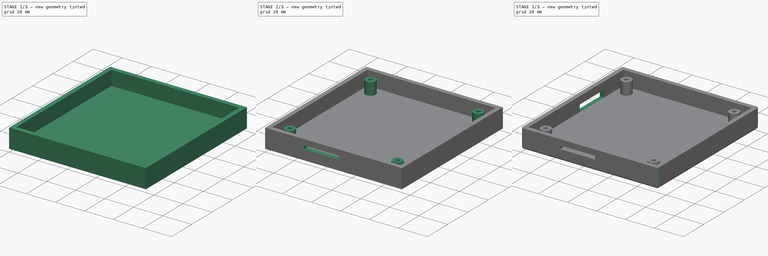
[diagram: build sequence overview — one tinted view per stage of 3, left to right]
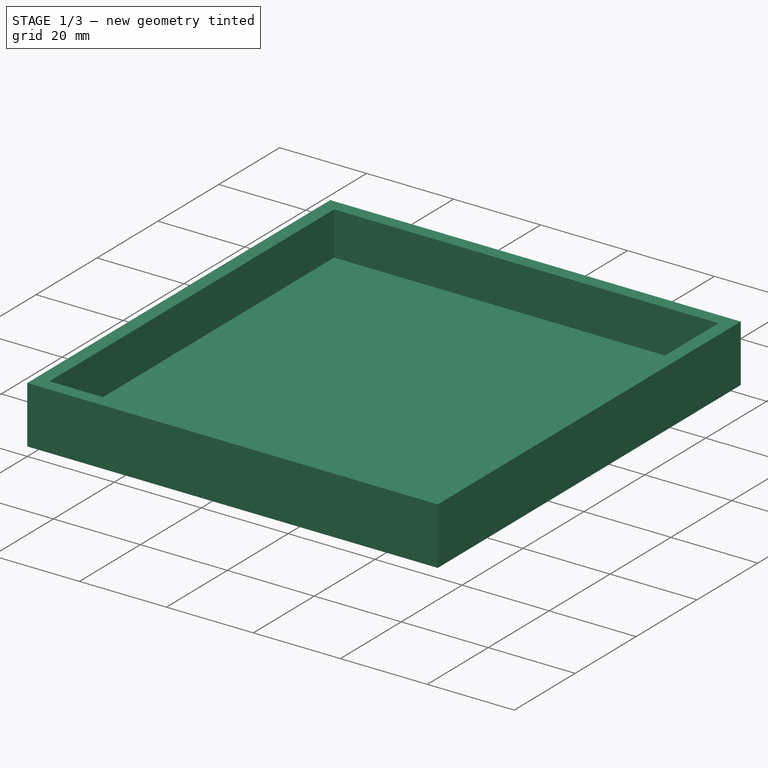
[diagram: stage 1 of 3 — iso view after this stage's code; geometry added in this stage tinted green]
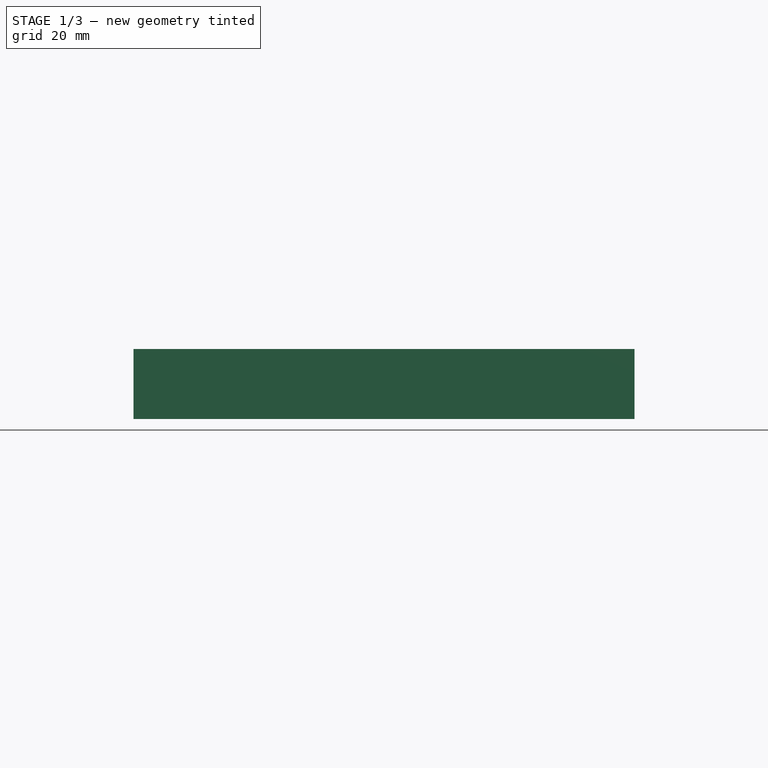
[diagram: stage 1 of 3 — front view after this stage's code; geometry added in this stage tinted green]
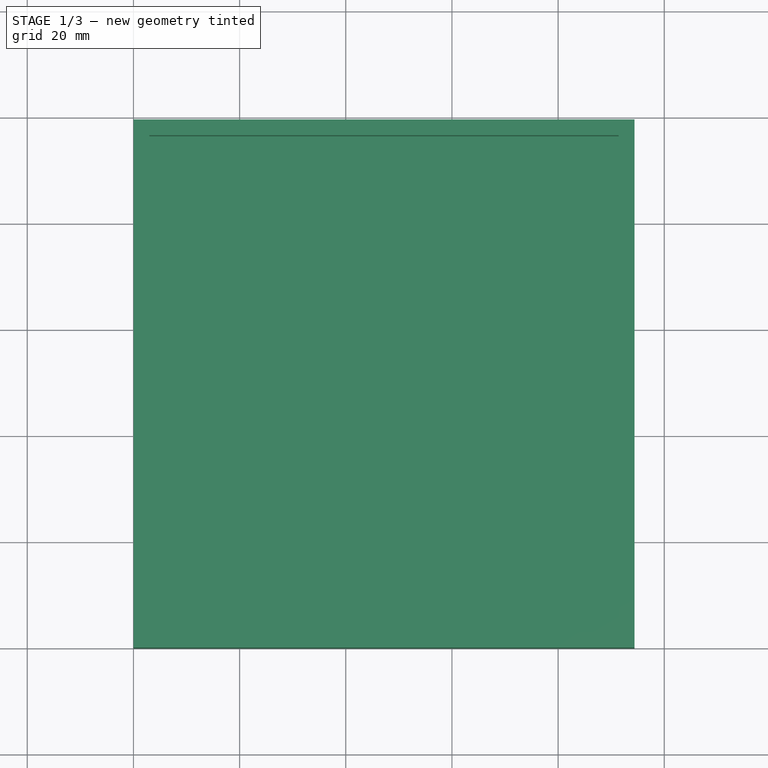
[diagram: stage 1 of 3 — top view after this stage's code; geometry added in this stage tinted green]
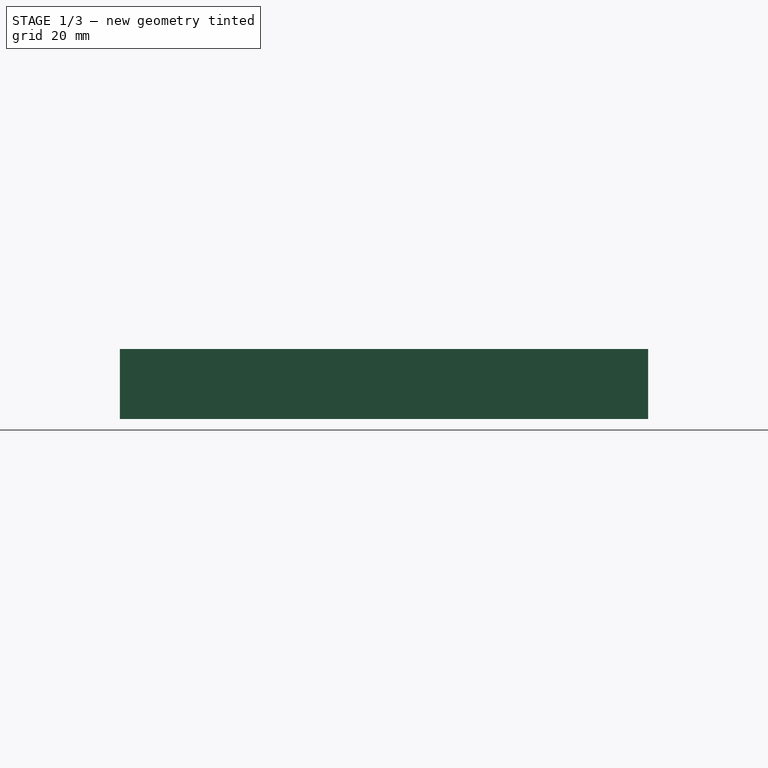
[diagram: stage 1 of 3 — right view after this stage's code; geometry added in this stage tinted green]
FCSTD DOCUMENT  (FreeCAD 0.20R29603 (Git))
Label: CaseBottom
License: All rights reserved
LicenseURL: http://en.wikipedia.org/wiki/All_rights_reserved
objects: Sketcher::SketchObject×5, PartDesign::Pocket×3, PartDesign::Pad×2, PartDesign::Fillet×1, PartDesign::Body×1
note: 18 computed .brp shape members not serialized (recipe doc carries the construction recipe); baked Part::Feature solids carry a one-line shape summary decoded from their .brp

FEATURE [Sketcher::SketchObject] Sketch
  FullyConstrained = true
  MapMode = 5
  Support = -> [XY_Plane]
  sketch-geometry (12):
    g0: LineSegment StartX=7 StartY=7 StartZ=0 EndX=87.4 EndY=7 EndZ=0
    g1: LineSegment StartX=87.4 StartY=7 StartZ=0 EndX=87.4 EndY=92.5 EndZ=0
    g2: LineSegment StartX=87.4 StartY=92.5 StartZ=0 EndX=7 EndY=92.5 EndZ=0
    g3: LineSegment StartX=7 StartY=92.5 StartZ=0 EndX=7 EndY=7 EndZ=0
    g4: LineSegment StartX=0 StartY=0 StartZ=0 EndX=94.4 EndY=0 EndZ=0
    g5: LineSegment StartX=94.4 StartY=0 StartZ=0 EndX=94.4 EndY=99.5 EndZ=0
    g6: LineSegment StartX=94.4 StartY=99.5 StartZ=0 EndX=0 EndY=99.5 EndZ=0
    g7: LineSegment StartX=0 StartY=99.5 StartZ=0 EndX=0 EndY=0 EndZ=0
    g8: LineSegment StartX=7 StartY=7 StartZ=0 EndX=0 EndY=7 EndZ=0
    g9: LineSegment StartX=87.4 StartY=7 StartZ=0 EndX=94.4 EndY=7 EndZ=0
    g10: LineSegment StartX=7 StartY=7 StartZ=0 EndX=7 EndY=0 EndZ=0
    g11: LineSegment StartX=7 StartY=92.5 StartZ=0 EndX=7 EndY=99.5 EndZ=0
  constraints (35):
    c: Coincident(g0,g1)
    c: Coincident(g1,g2)
    c: Coincident(g2,g3)
    c: Coincident(g3,g0)
    c: Horizontal(g0)
    c: Horizontal(g2)
    c: Vertical(g1)
    c: Vertical(g3)
    c: Distance(g3) = 85.5
    c: Distance(g2) = 80.4
    c: Coincident(g4,g5)
    c: Coincident(g5,g6)
    c: Coincident(g6,g7)
    c: Coincident(g7,g4)
    c: Horizontal(g4)
    c: Horizontal(g6)
    c: Vertical(g5)
    c: Vertical(g7)
    c: Coincident(g4,g-1)
    c: Coincident(g8,g0)
    c: PointOnObject(g8,g7)
    c: Horizontal(g8)
    c: Coincident(g9,g0)
    c: PointOnObject(g9,g5)
    c: Horizontal(g9)
    c: Coincident(g10,g0)
    c: PointOnObject(g10,g4)
    c: Vertical(g10)
    c: Coincident(g11,g2)
    c: PointOnObject(g11,g6)
    c: Vertical(g11)
    c: Equal(g11,g10)
    c: Equal(g9,g8)
    c: Equal(g10,g8)
    c: Distance(g10) = 7
FEATURE [PartDesign::Pad] Pad  label="Base"
  Direction = (0,0,1)
  Length = 13.2
  Length2 = 10
  Profile = -> Sketch
  ReferenceAxis = -> Sketch [N_Axis]
  Type = 0
FEATURE [Sketcher::SketchObject] Sketch001
  ExternalGeometry = -> [Pad]
  FullyConstrained = true
  MapMode = 5
  Placement = pos=(0,0,13.2) rot=(0,0,1;0rad)
  Support = -> [Pad]
  sketch-geometry (8):
    g0: LineSegment StartX=3 StartY=3 StartZ=0 EndX=91.4 EndY=3 EndZ=0
    g1: LineSegment StartX=91.4 StartY=3 StartZ=0 EndX=91.4 EndY=96.5 EndZ=0
    g2: LineSegment StartX=91.4 StartY=96.5 StartZ=0 EndX=3 EndY=96.5 EndZ=0
    g3: LineSegment StartX=3 StartY=96.5 StartZ=0 EndX=3 EndY=3 EndZ=0
    g4: LineSegment StartX=3 StartY=3 StartZ=0 EndX=3 EndY=0 EndZ=0
    g5: LineSegment StartX=3 StartY=3 StartZ=0 EndX=0 EndY=3 EndZ=0
    g6: LineSegment StartX=3 StartY=96.5 StartZ=0 EndX=3 EndY=99.5 EndZ=0
    g7: LineSegment StartX=91.4 StartY=3 StartZ=0 EndX=94.4 EndY=3 EndZ=0
  constraints (24):
    c: Coincident(g0,g1)
    c: Coincident(g1,g2)
    c: Coincident(g2,g3)
    c: Coincident(g3,g0)
    c: Horizontal(g0)
    c: Horizontal(g2)
    c: Vertical(g1)
    c: Vertical(g3)
    c: Coincident(g4,g0)
    c: PointOnObject(g4,g-1)
    c: Vertical(g4)
    c: Coincident(g5,g0)
    c: PointOnObject(g5,g-2)
    c: Horizontal(g5)
    c: Coincident(g6,g2)
    c: Vertical(g6)
    c: Coincident(g7,g0)
    c: PointOnObject(g7,g-3)
    c: Horizontal(g7)
    c: PointOnObject(g6,g-4)
    c: Equal(g5,g4)
    c: Distance(g4) = 3
    c: Equal(g7,g5)
    c: Equal(g4,g6)
FEATURE [PartDesign::Pocket] Pocket
  BaseFeature = -> Pad
  Direction = (0,0,-1)
  Length = 10
  Length2 = 5
  Profile = -> Sketch001
  ReferenceAxis = -> Sketch001 [N_Axis]
  Type = 0
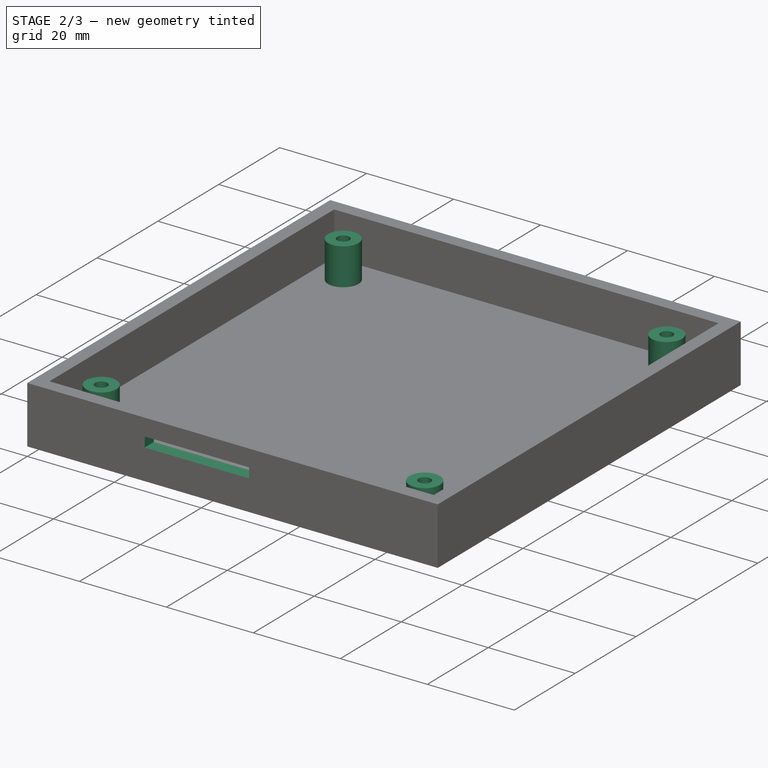
[diagram: stage 2 of 3 — iso view after this stage's code; geometry added in this stage tinted green]
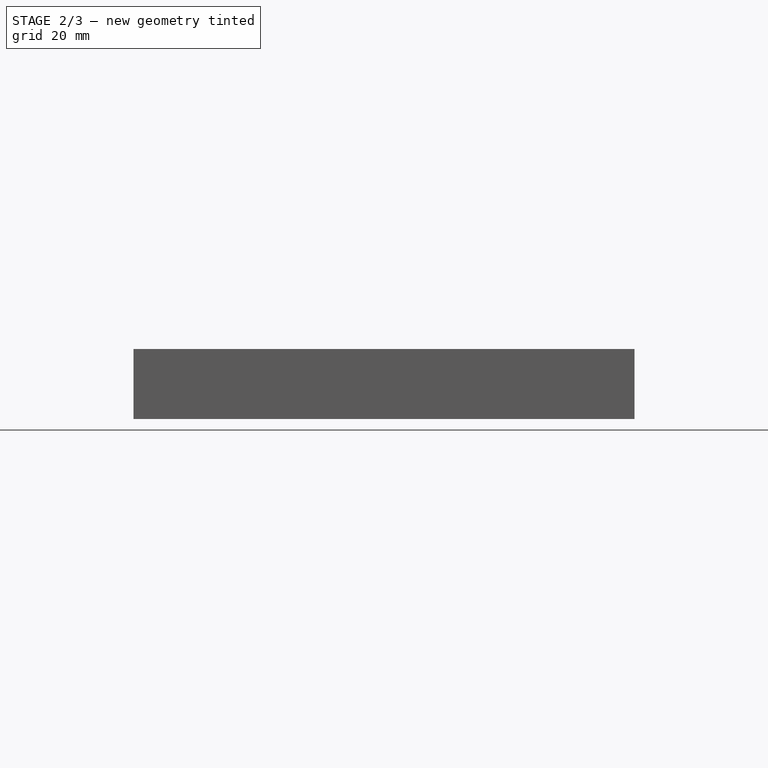
[diagram: stage 2 of 3 — front view after this stage's code; geometry added in this stage tinted green]
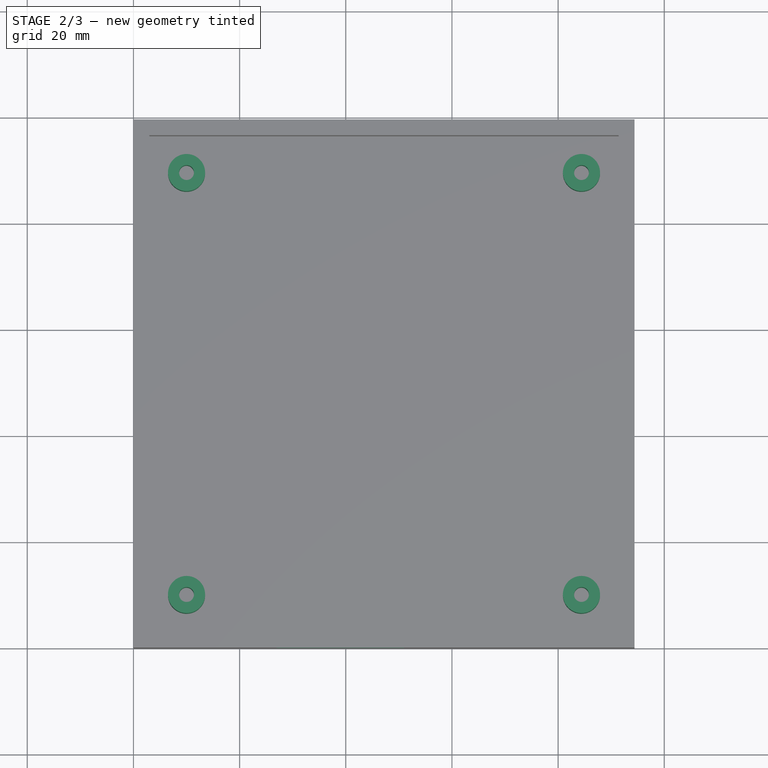
[diagram: stage 2 of 3 — top view after this stage's code; geometry added in this stage tinted green]
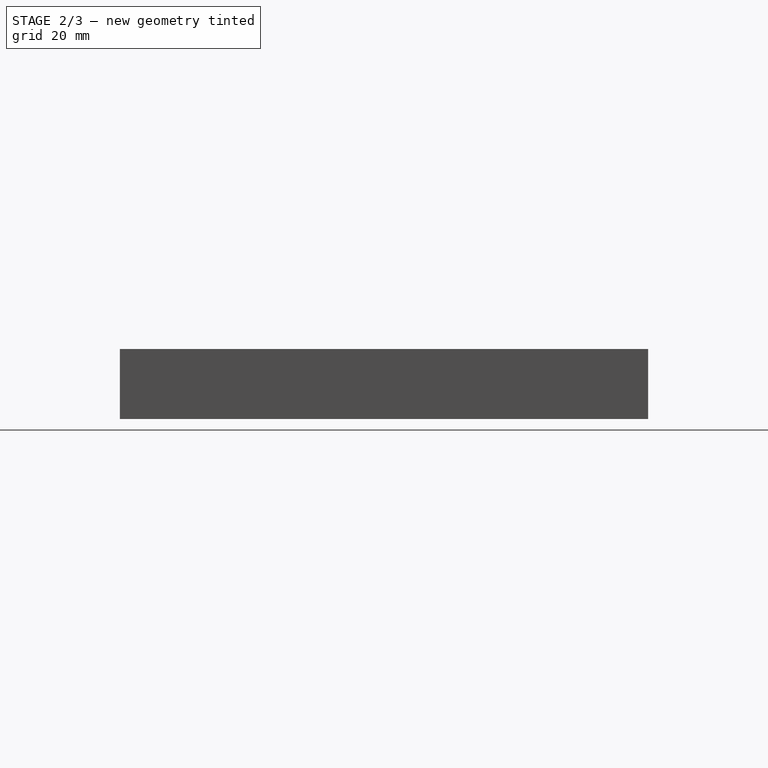
[diagram: stage 2 of 3 — right view after this stage's code; geometry added in this stage tinted green]
FEATURE [Sketcher::SketchObject] Sketch002
  ExternalGeometry = -> [Pocket]
  FullyConstrained = true
  MapMode = 5
  Placement = pos=(0,0,3.2) rot=(0,0,1;0rad)
  Support = -> [Pocket]
  sketch-geometry (16):
    g0: LineSegment StartX=10 StartY=10 StartZ=0 EndX=84.4 EndY=10 EndZ=0
    g1: LineSegment StartX=84.4 StartY=10 StartZ=0 EndX=84.4 EndY=89.5 EndZ=0
    g2: LineSegment StartX=84.4 StartY=89.5 StartZ=0 EndX=10 EndY=89.5 EndZ=0
    g3: LineSegment StartX=10 StartY=89.5 StartZ=0 EndX=10 EndY=10 EndZ=0
    g4: LineSegment StartX=10 StartY=10 StartZ=0 EndX=10 EndY=3 EndZ=0
    g5: LineSegment StartX=10 StartY=10 StartZ=0 EndX=3 EndY=10 EndZ=0
    g6: LineSegment StartX=84.4 StartY=10 StartZ=0 EndX=91.4 EndY=10 EndZ=0
    g7: LineSegment StartX=10 StartY=89.5 StartZ=0 EndX=10 EndY=96.5 EndZ=0
    g8: Circle CenterX=84.4 CenterY=89.5 CenterZ=0 NormalX=0 NormalY=0 NormalZ=1 AngleXU=0 Radius=3.5
    g9: Circle CenterX=84.4 CenterY=89.5 CenterZ=0 NormalX=0 NormalY=0 NormalZ=1 AngleXU=0 Radius=1.4
    g10: Circle CenterX=10 CenterY=89.5 CenterZ=0 NormalX=0 NormalY=0 NormalZ=1 AngleXU=0 Radius=3.5
    g11: Circle CenterX=10 CenterY=89.5 CenterZ=0 NormalX=0 NormalY=0 NormalZ=1 AngleXU=0 Radius=1.4
    g12: Circle CenterX=10 CenterY=10 CenterZ=0 NormalX=0 NormalY=0 NormalZ=1 AngleXU=0 Radius=3.5
    g13: Circle CenterX=10 CenterY=10 CenterZ=0 NormalX=0 NormalY=0 NormalZ=1 AngleXU=0 Radius=1.4
    g14: Circle CenterX=84.4 CenterY=10 CenterZ=0 NormalX=0 NormalY=0 NormalZ=1 AngleXU=0 Radius=3.5
    g15: Circle CenterX=84.4 CenterY=10 CenterZ=0 NormalX=0 NormalY=0 NormalZ=1 AngleXU=0 Radius=1.4
  constraints (40):
    c: Coincident(g0,g1)
    c: Coincident(g1,g2)
    c: Coincident(g2,g3)
    c: Coincident(g3,g0)
    c: Horizontal(g0)
    c: Horizontal(g2)
    c: Vertical(g1)
    c: Vertical(g3)
    c: Coincident(g4,g0)
    c: PointOnObject(g4,g-3)
    c: Vertical(g4)
    c: Coincident(g5,g0)
    c: PointOnObject(g5,g-5)
    c: Horizontal(g5)
    c: Coincident(g6,g0)
    c: PointOnObject(g6,g-4)
    c: Horizontal(g6)
    c: Coincident(g7,g2)
    c: PointOnObject(g7,g-6)
    c: Vertical(g7)
    c: Equal(g4,g7)
    c: Equal(g5,g6)
    c: Coincident(g8,g1)
    c: Coincident(g9,g8)
    c: Diameter(g9) = 2.8
    c: Diameter(g8) = 7
    c: Coincident(g10,g2)
    c: Coincident(g11,g10)
    c: Coincident(g12,g0)
    c: Coincident(g13,g12)
    c: Coincident(g14,g0)
    c: Coincident(g15,g14)
    c: Diameter(g15) = 2.8
    c: Diameter(g14) = 7
    c: Diameter(g12) = 7
    c: Diameter(g13) = 2.8
    c: Diameter(g11) = 2.8
    c: Diameter(g10) = 7
    c: Equal(g5,g4)
    c: Distance(g4) = 7
FEATURE [PartDesign::Pad] Pad001  label="Stand"
  BaseFeature = -> Pocket
  Direction = (0,0,1)
  Length = 8.5
  Length2 = 10
  Profile = -> Sketch002
  ReferenceAxis = -> Sketch002 [N_Axis]
  Type = 0
FEATURE [Sketcher::SketchObject] Sketch003
  FullyConstrained = true
  MapMode = 5
  Placement = pos=(0,0,0) rot=(1,0,0;1.5708rad)
  Support = -> [Pad001]
  sketch-geometry (4):
    g0: LineSegment StartX=27 StartY=9.3 StartZ=0 EndX=51 EndY=9.3 EndZ=0
    g1: LineSegment StartX=51 StartY=9.3 StartZ=0 EndX=51 EndY=7 EndZ=0
    g2: LineSegment StartX=51 StartY=7 StartZ=0 EndX=27 EndY=7 EndZ=0
    g3: LineSegment StartX=27 StartY=7 StartZ=0 EndX=27 EndY=9.3 EndZ=0
  constraints (12):
    c: Coincident(g0,g1)
    c: Coincident(g1,g2)
    c: Coincident(g2,g3)
    c: Coincident(g3,g0)
    c: Horizontal(g0)
    c: Horizontal(g2)
    c: Vertical(g1)
    c: Vertical(g3)
    c: Distance(g1) = 2.3
    c: Distance(g0,g-2) = 27
    c: Distance(g2) = 24
    c: Distance(g2,g-1) = 7
FEATURE [PartDesign::Pocket] Pocket001  label="SD"
  BaseFeature = -> Pad001
  Direction = (0,1,-2e-16)
  Length = 5
  Length2 = 5
  Profile = -> Sketch003
  ReferenceAxis = -> Sketch003 [N_Axis]
  Type = 2
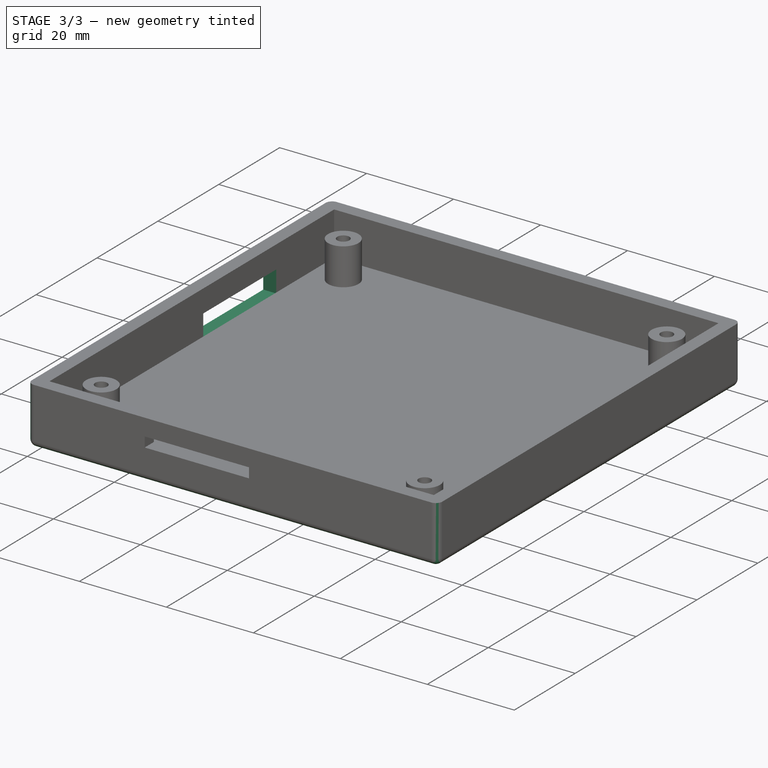
[diagram: stage 3 of 3 — iso view after this stage's code; geometry added in this stage tinted green]
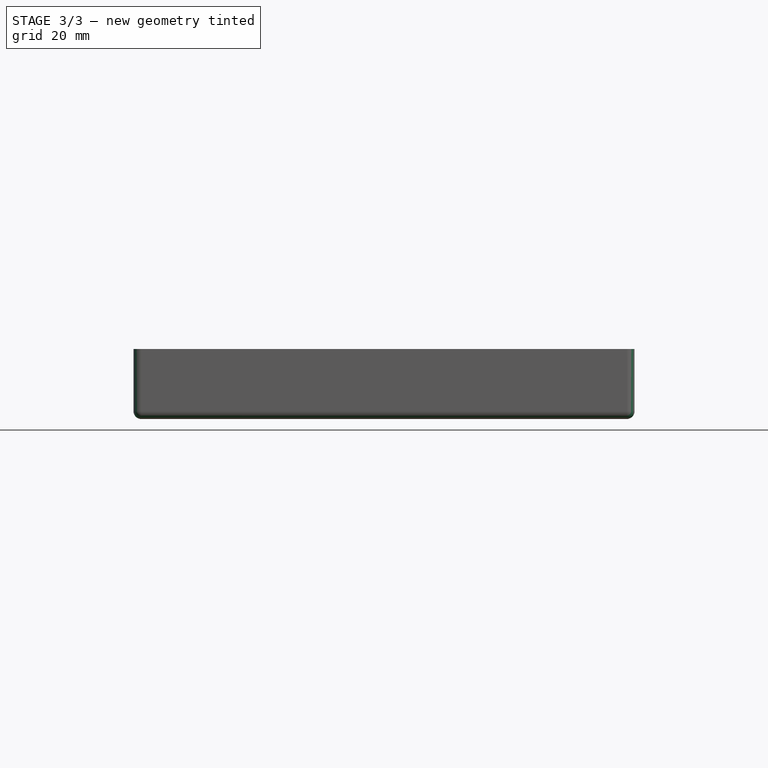
[diagram: stage 3 of 3 — front view after this stage's code; geometry added in this stage tinted green]
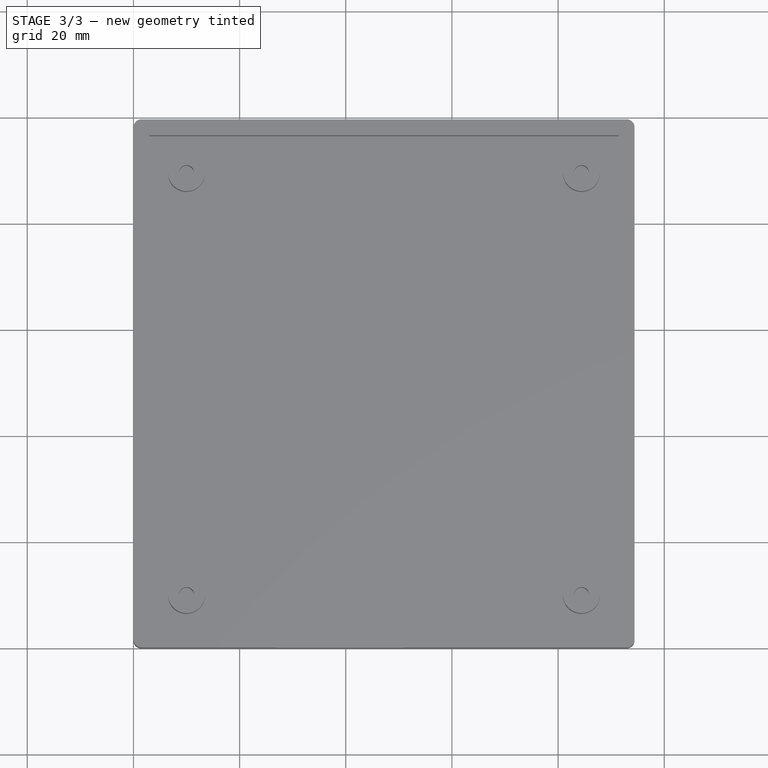
[diagram: stage 3 of 3 — top view after this stage's code; geometry added in this stage tinted green]
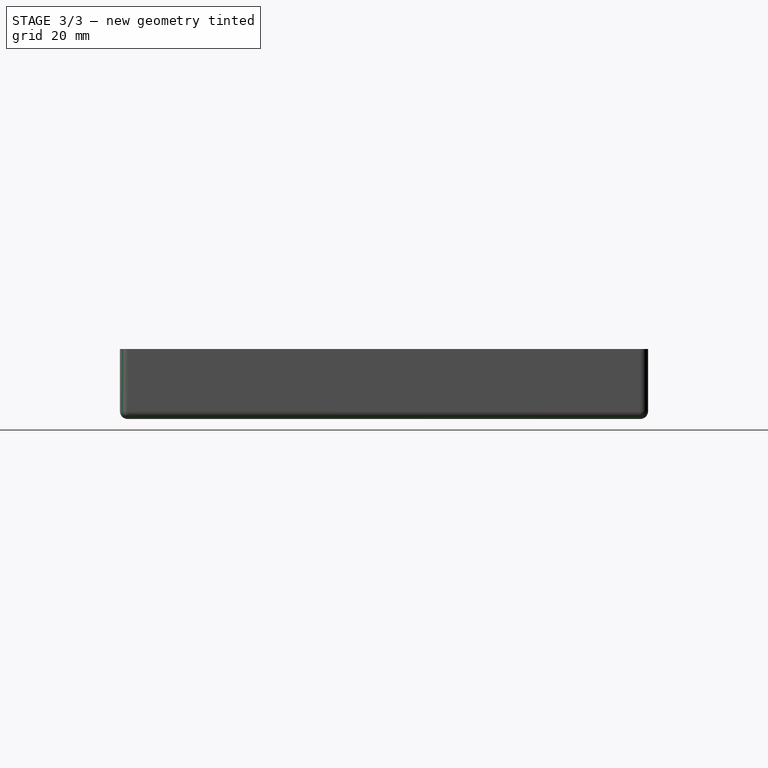
[diagram: stage 3 of 3 — right view after this stage's code; geometry added in this stage tinted green]
FEATURE [Sketcher::SketchObject] Sketch004
  ExternalGeometry = -> [Pocket001]
  FullyConstrained = true
  MapMode = 5
  Placement = pos=(0,0,0) rot=(0.57735,-0.57735,-0.57735;2.0944rad)
  Support = -> [Pocket001]
  sketch-geometry (4):
    g0: LineSegment StartX=-77.5 StartY=8 StartZ=0 EndX=-53.5 EndY=8 EndZ=0
    g1: LineSegment StartX=-53.5 StartY=8 StartZ=0 EndX=-53.5 EndY=3 EndZ=0
    g2: LineSegment StartX=-53.5 StartY=3 StartZ=0 EndX=-77.5 EndY=3 EndZ=0
    g3: LineSegment StartX=-77.5 StartY=3 StartZ=0 EndX=-77.5 EndY=8 EndZ=0
  constraints (12):
    c: Coincident(g0,g1)
    c: Coincident(g1,g2)
    c: Coincident(g2,g3)
    c: Coincident(g3,g0)
    c: Horizontal(g0)
    c: Horizontal(g2)
    c: Vertical(g1)
    c: Vertical(g3)
    c: Distance(g2,g-3) = 22
    c: Distance(g2) = 24
    c: Distance(g3) = 5
    c: Distance(g2,g-1) = 3
FEATURE [PartDesign::Pocket] Pocket002  label="VideoPort"
  BaseFeature = -> Pocket001
  Direction = (1,0,0)
  Length = 5
  Length2 = 5
  Profile = -> Sketch004
  ReferenceAxis = -> Sketch004 [N_Axis]
  Type = 2
FEATURE [PartDesign::Fillet] Fillet
  Base = -> Pocket002 [Face3,Edge4,Edge1,Edge24,Edge9]
  BaseFeature = -> Pocket002
  Radius = 1.5
  SupportTransform = false
  UseAllEdges = false
FEATURE [PartDesign::Body] Body
  Group = -> [Sketch,Pad,Sketch001,Pocket,Sketch002,Pad001,Sketch003,Pocket001,Sketch004,Pocket002,Fillet]
  Origin = -> Origin
  Tip = -> Fillet
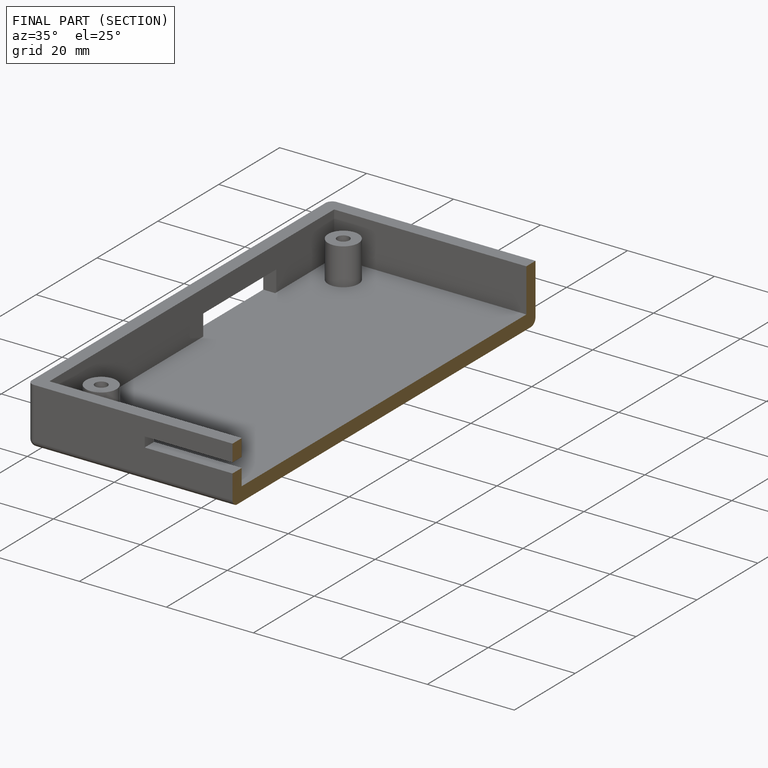
[diagram: finished part — half-section view (interior)]
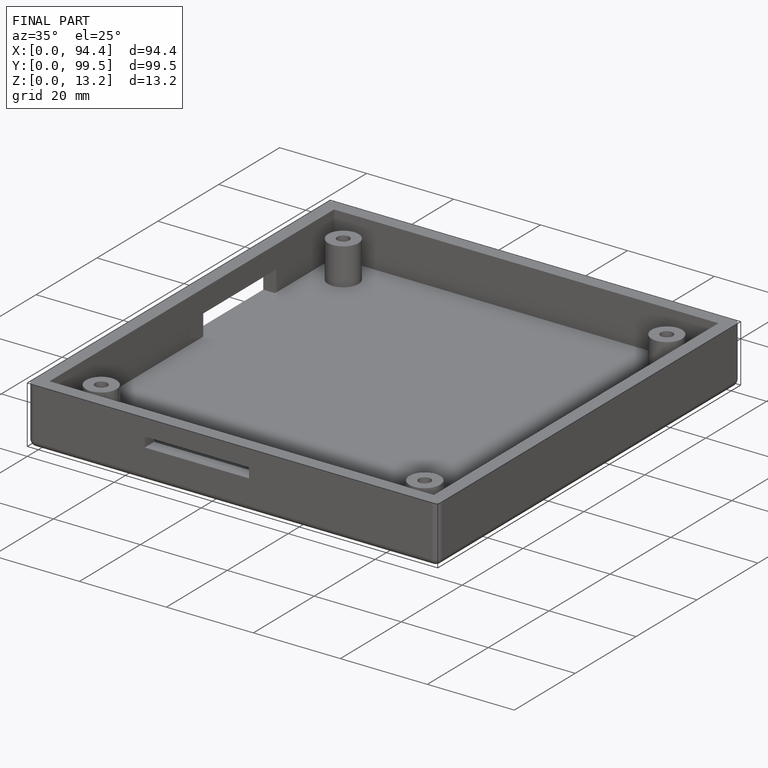
[diagram: finished part — iso view with bounding-box wireframe]
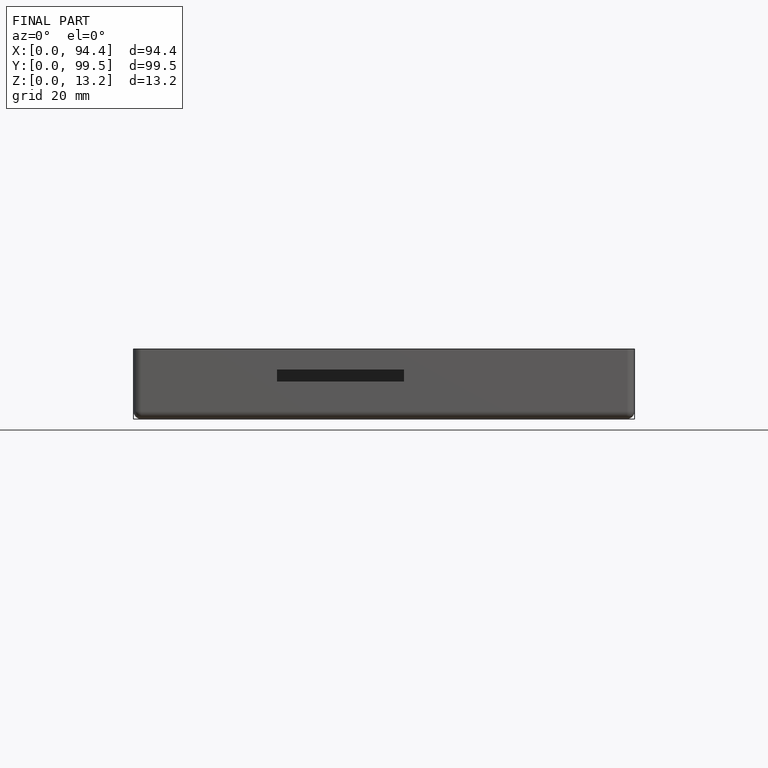
[diagram: finished part — front view with bounding-box wireframe]
